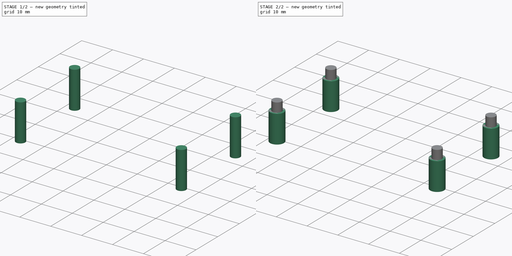
[diagram: build sequence overview — one tinted view per stage of 2, left to right]
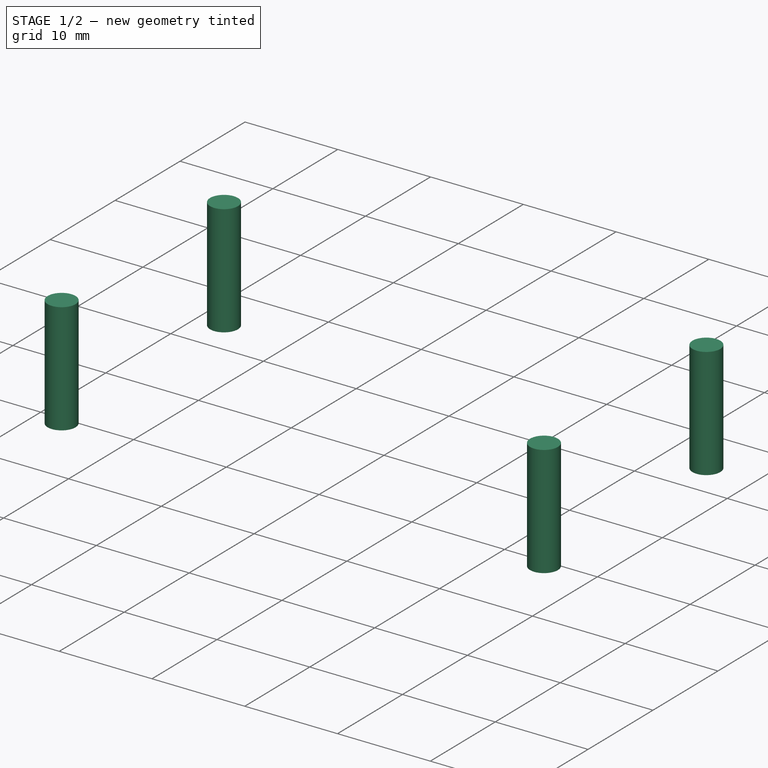
[diagram: stage 1 of 2 — iso view after this stage's code; geometry added in this stage tinted green]
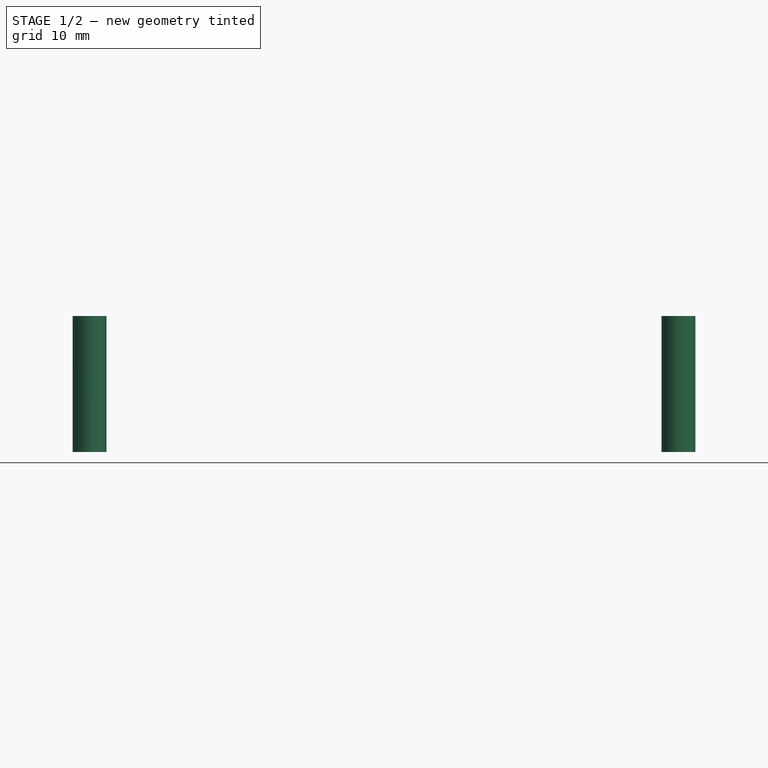
[diagram: stage 1 of 2 — front view after this stage's code; geometry added in this stage tinted green]
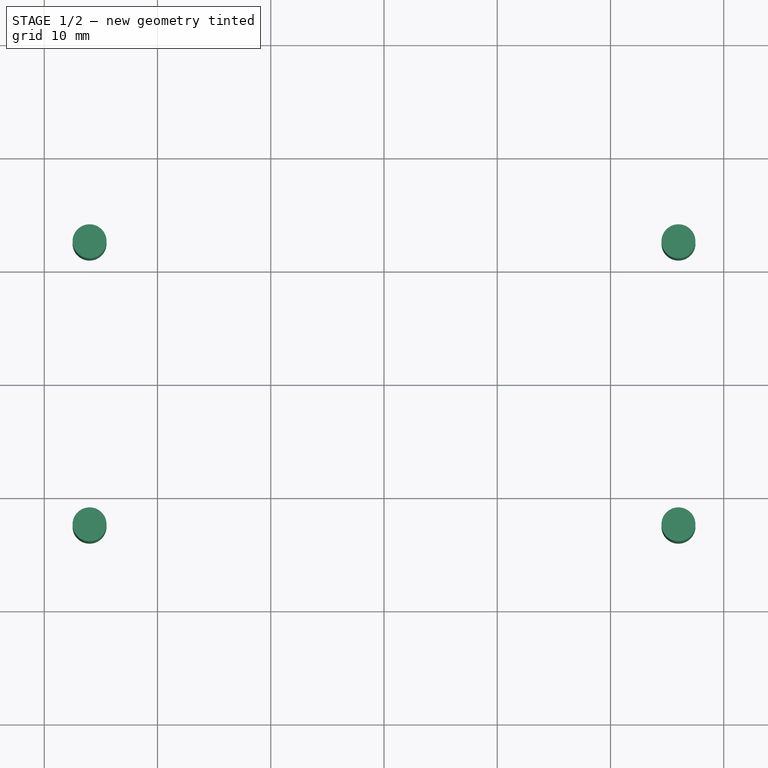
[diagram: stage 1 of 2 — top view after this stage's code; geometry added in this stage tinted green]
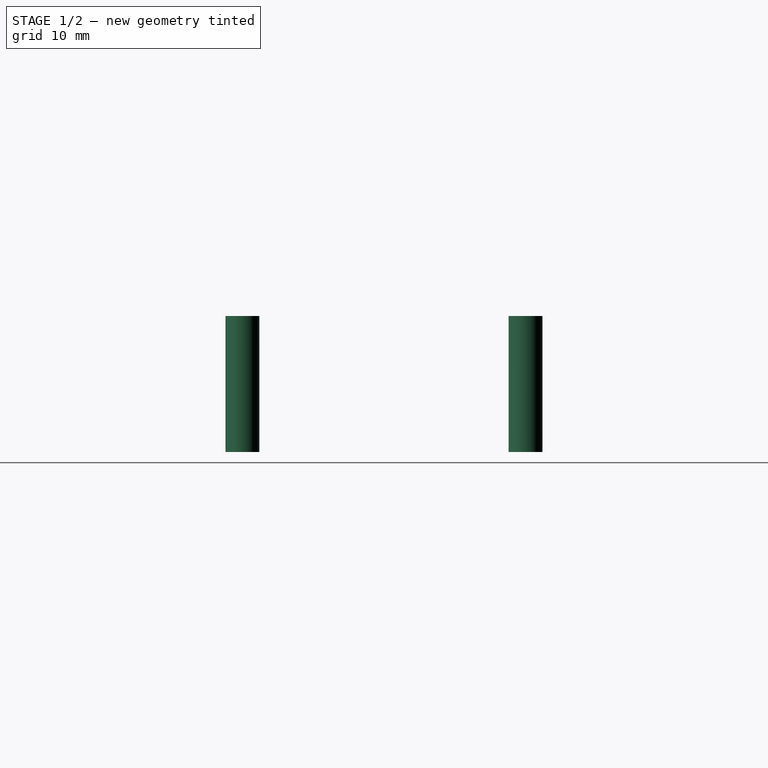
[diagram: stage 1 of 2 — right view after this stage's code; geometry added in this stage tinted green]
FCSTD DOCUMENT  (FreeCAD 0.15R4671 (Git))
Label: NodeMCU v3 Case
License: All rights reserved
LicenseURL: http://en.wikipedia.org/wiki/All_rights_reserved
objects: Sketcher::SketchObject×3, PartDesign::Pad×2
note: 7 computed .brp shape members not serialized (recipe doc carries the construction recipe); baked Part::Feature solids carry a one-line shape summary decoded from their .brp

FEATURE [PartDesign::Pad] Pad001  label="pad_mounting_posts"
  Length = 12
  Length2 = 100
  Sketch = -> Sketch
  Type = 0
FEATURE [Sketcher::SketchObject] Sketch002
  sketch-geometry (4):
    g0: LineSegment StartX=-29.5 StartY=17 StartZ=0 EndX=29.5 EndY=17 EndZ=0
    g1: LineSegment StartX=29.5 StartY=17 StartZ=0 EndX=29.5 EndY=-17 EndZ=0
    g2: LineSegment StartX=29.5 StartY=-17 StartZ=0 EndX=-29.5 EndY=-17 EndZ=0
    g3: LineSegment StartX=-29.5 StartY=-17 StartZ=0 EndX=-29.5 EndY=17 EndZ=0
  constraints (12):
    c: Coincident(g0,g1)
    c: Coincident(g1,g2)
    c: Coincident(g2,g3)
    c: Coincident(g3,g0)
    c: Horizontal(g0)
    c: Horizontal(g2)
    c: Vertical(g1)
    c: Vertical(g3)
    c: Symmetric(g1,g0,g-1)
    c: Symmetric(g1,g2,g-2)
    c: DistanceY(g1) = -34
    c: DistanceX(g2) = -59
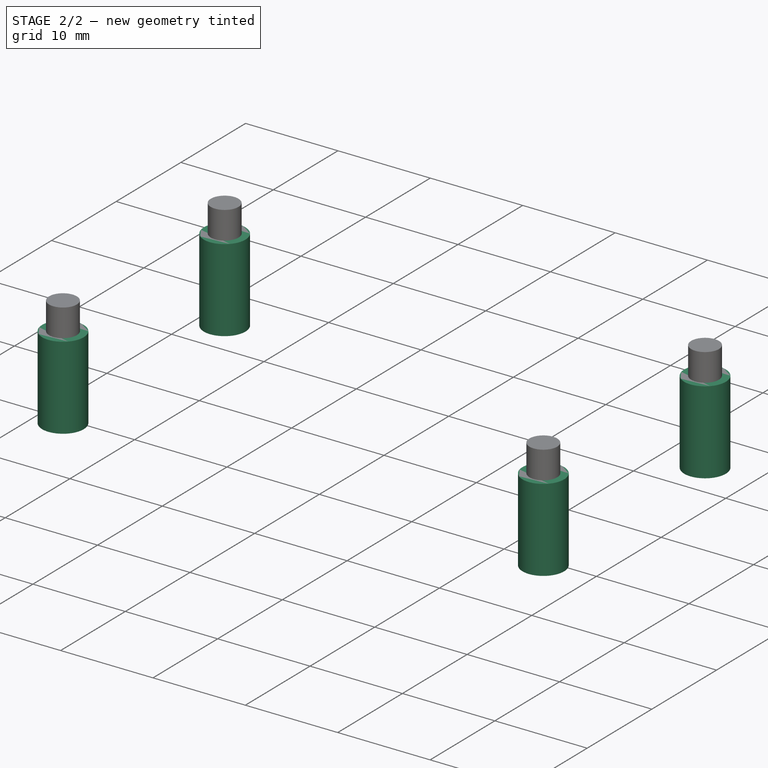
[diagram: stage 2 of 2 — iso view after this stage's code; geometry added in this stage tinted green]
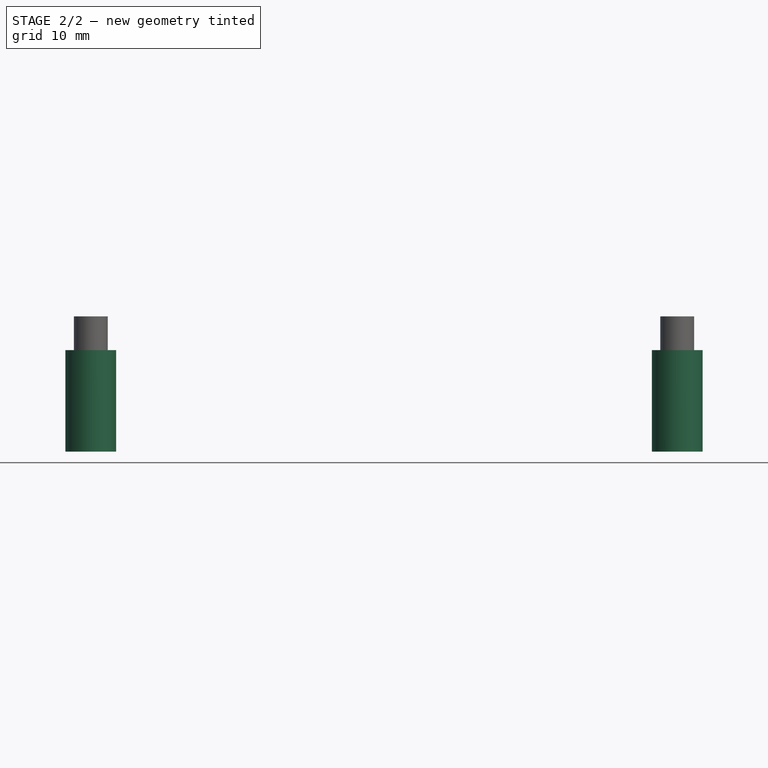
[diagram: stage 2 of 2 — front view after this stage's code; geometry added in this stage tinted green]
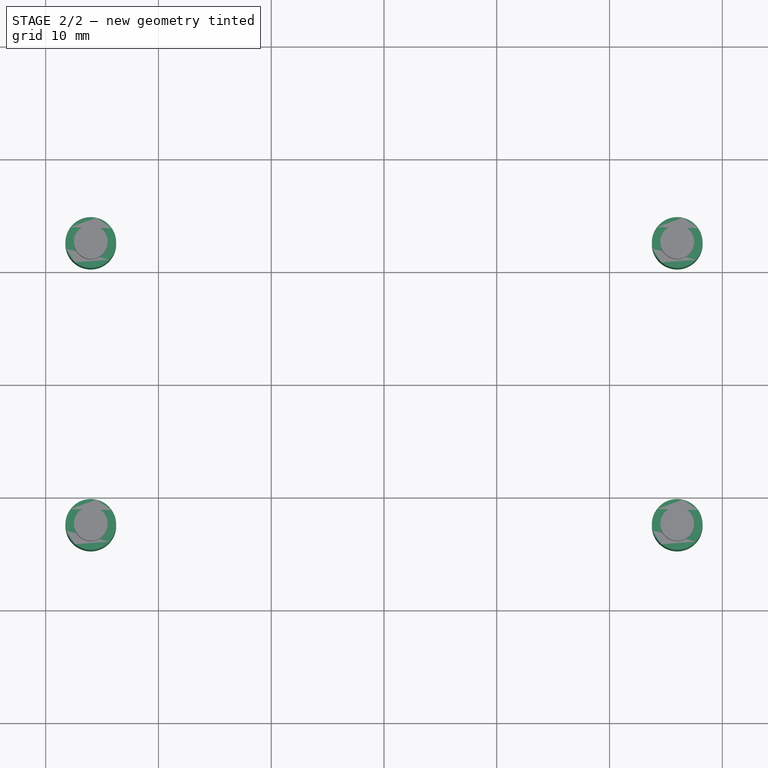
[diagram: stage 2 of 2 — top view after this stage's code; geometry added in this stage tinted green]
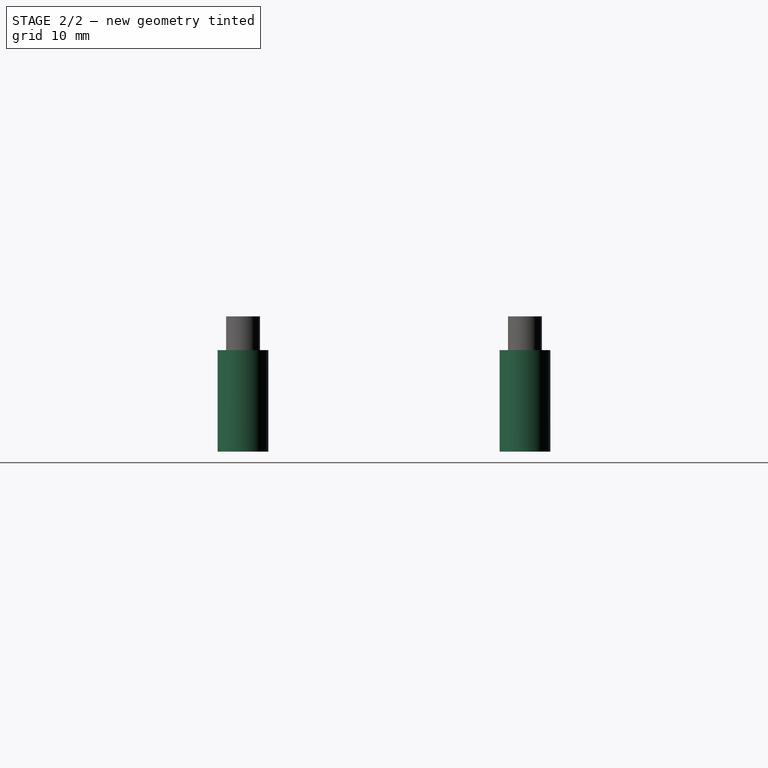
[diagram: stage 2 of 2 — right view after this stage's code; geometry added in this stage tinted green]
FEATURE [Sketcher::SketchObject] Sketch  label="mounting posts"
  sketch-geometry (8):
    g0: LineSegment [constr] StartX=-26 StartY=12.5 StartZ=0 EndX=26 EndY=12.5 EndZ=0
    g1: LineSegment [constr] StartX=26 StartY=12.5 StartZ=0 EndX=26 EndY=-12.5 EndZ=0
    g2: LineSegment [constr] StartX=26 StartY=-12.5 StartZ=0 EndX=-26 EndY=-12.5 EndZ=0
    g3: LineSegment [constr] StartX=-26 StartY=-12.5 StartZ=0 EndX=-26 EndY=12.5 EndZ=0
    g4: Circle CenterX=-26 CenterY=12.5 CenterZ=0 NormalX=0 NormalY=0 NormalZ=1 Radius=1.5
    g5: Circle CenterX=-26 CenterY=-12.5 CenterZ=0 NormalX=0 NormalY=0 NormalZ=1 Radius=1.5
    g6: Circle CenterX=26 CenterY=12.5 CenterZ=0 NormalX=0 NormalY=0 NormalZ=1 Radius=1.5
    g7: Circle CenterX=26 CenterY=-12.5 CenterZ=0 NormalX=0 NormalY=0 NormalZ=1 Radius=1.5
  constraints (20):
    c: Coincident(g0,g1)
    c: Coincident(g1,g2)
    c: Coincident(g2,g3)
    c: Coincident(g3,g0)
    c: Horizontal(g0)
    c: Horizontal(g2)
    c: Vertical(g1)
    c: Vertical(g3)
    c: Symmetric(g0,g0,g-2)
    c: Symmetric(g0,g1,g-1)
    c: DistanceY(g1) = -25
    c: DistanceX(g2) = -52
    c: Coincident(g4,g0)
    c: Coincident(g5,g2)
    c: Coincident(g6,g0)
    c: Coincident(g7,g1)
    c: Equal(g7,g6)
    c: Equal(g6,g4)
    c: Equal(g4,g5)
    c: Radius(g4) = 1.5
FEATURE [Sketcher::SketchObject] Sketch001  label="mounting pads"
  sketch-geometry (8):
    g0: LineSegment [constr] StartX=-26 StartY=12.5 StartZ=0 EndX=26 EndY=12.5 EndZ=0
    g1: LineSegment [constr] StartX=26 StartY=12.5 StartZ=0 EndX=26 EndY=-12.5 EndZ=0
    g2: LineSegment [constr] StartX=26 StartY=-12.5 StartZ=0 EndX=-26 EndY=-12.5 EndZ=0
    g3: LineSegment [constr] StartX=-26 StartY=-12.5 StartZ=0 EndX=-26 EndY=12.5 EndZ=0
    g4: Circle CenterX=-26 CenterY=12.5 CenterZ=0 NormalX=0 NormalY=0 NormalZ=1 Radius=2.25
    g5: Circle CenterX=-26 CenterY=-12.5 CenterZ=0 NormalX=0 NormalY=0 NormalZ=1 Radius=2.25
    g6: Circle CenterX=26 CenterY=12.5 CenterZ=0 NormalX=0 NormalY=0 NormalZ=1 Radius=2.25
    g7: Circle CenterX=26 CenterY=-12.5 CenterZ=0 NormalX=0 NormalY=0 NormalZ=1 Radius=2.25
  constraints (20):
    c: Coincident(g0,g1)
    c: Coincident(g1,g2)
    c: Coincident(g2,g3)
    c: Coincident(g3,g0)
    c: Horizontal(g0)
    c: Horizontal(g2)
    c: Vertical(g1)
    c: Vertical(g3)
    c: Symmetric(g0,g0,g-2)
    c: Symmetric(g0,g1,g-1)
    c: DistanceY(g1) = -25
    c: DistanceX(g2) = -52
    c: Coincident(g4,g0)
    c: Coincident(g5,g2)
    c: Coincident(g6,g0)
    c: Coincident(g7,g1)
    c: Equal(g7,g6)
    c: Equal(g6,g4)
    c: Equal(g4,g5)
    c: Radius(g4) = 2.25
FEATURE [PartDesign::Pad] Pad  label="pad_mounting_pads"
  Length = 9
  Length2 = 100
  Sketch = -> Sketch001
  Type = 0
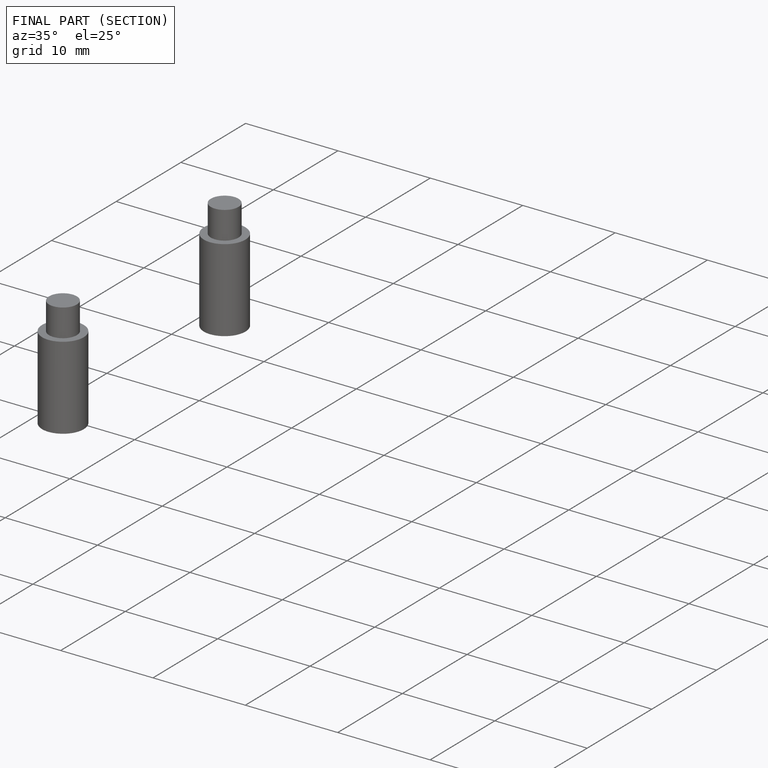
[diagram: finished part — half-section view (interior)]
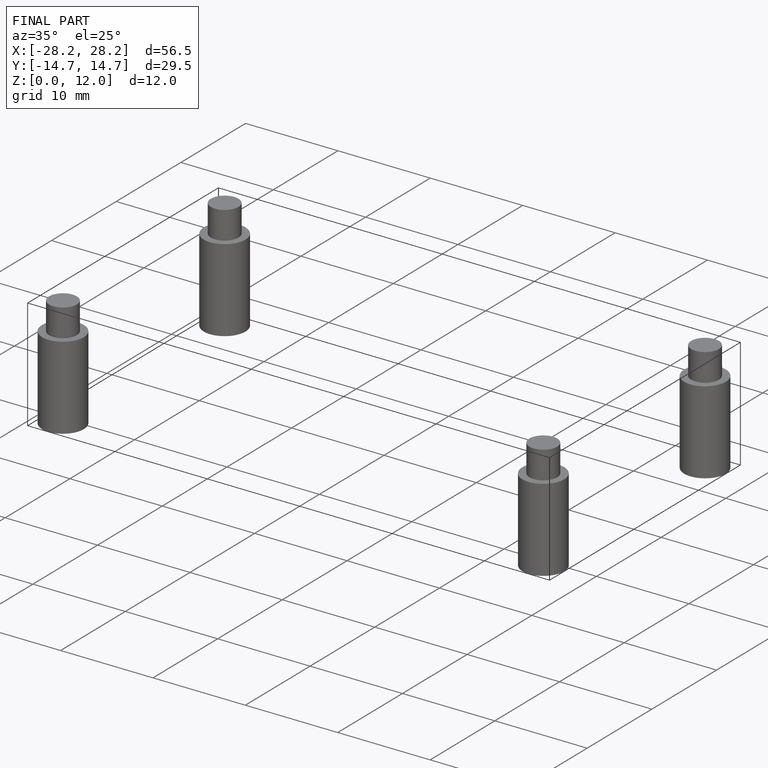
[diagram: finished part — iso view with bounding-box wireframe]
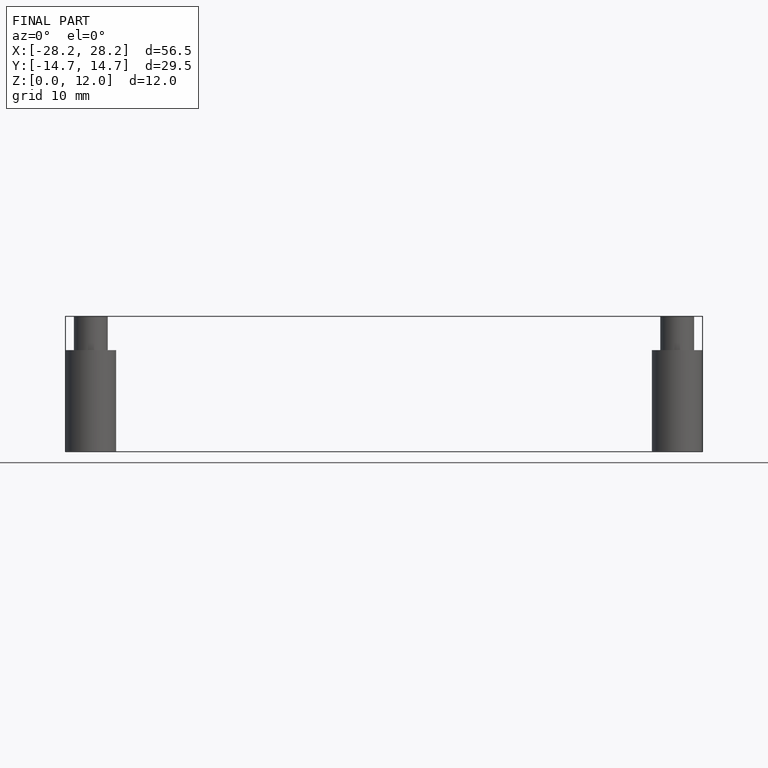
[diagram: finished part — front view with bounding-box wireframe]
